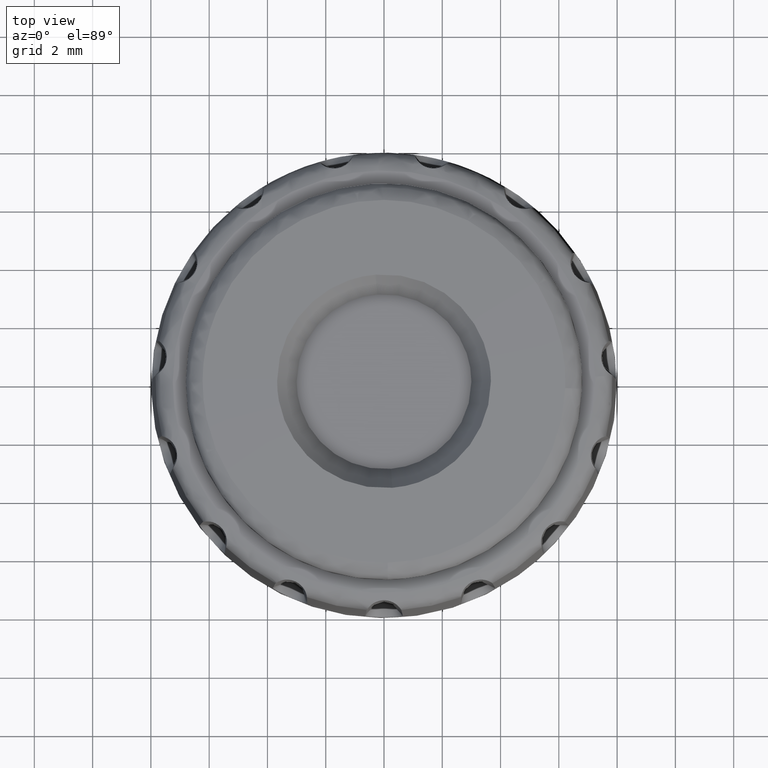
[diagram: clean part render]
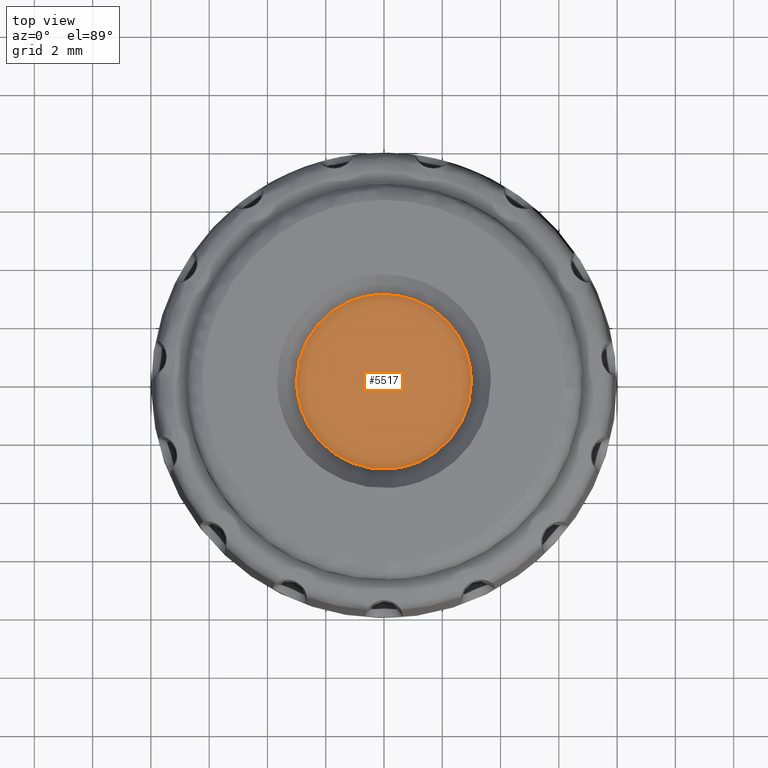
[diagram: same view with one face highlighted and labeled with its STEP entity id]
A machine part, top view. The second image highlights one B-rep face of the part: STEP entity #5517.
In plain terms, the highlighted face is a freeform B-spline surface patch.
Its self-contained STEP definition (entity closure, byte-faithful):
#705=CARTESIAN_POINT('',(-3.0,0.0,10.0));
#706=VERTEX_POINT('',#705);
#707=CARTESIAN_POINT('',(-0.235377287188171,2.990752001199546,10.000000000000741));
#708=VERTEX_POINT('',#707);
#709=CARTESIAN_POINT('',(-3.0,0.0,10.0));
#710=CARTESIAN_POINT('',(-3.0,2.773171474966078,10.000000000000002));
#711=CARTESIAN_POINT('',(-0.235377287188171,2.990752001199546,10.000000000000744));
#719=(BOUNDED_CURVE()B_SPLINE_CURVE(2,(#709,#710,#711),.UNSPECIFIED.,.F.,.U.)B_SPLINE_CURVE_WITH_KNOTS((3,3),(0.0,0.236331300632240),.UNSPECIFIED.)CURVE()GEOMETRIC_REPRESENTATION_ITEM()RATIONAL_B_SPLINE_CURVE((1.0,0.723120658605814,0.969723356170717))REPRESENTATION_ITEM(''));
#720=EDGE_CURVE('',#706,#708,#719,.T.);
#761=CARTESIAN_POINT('',(0.235377287188171,-2.990752001199546,10.000000000000741));
#762=VERTEX_POINT('',#761);
#768=CARTESIAN_POINT('',(0.235377287188171,-2.990752001199546,10.000000000000744));
#769=CARTESIAN_POINT('',(0.117870321027624,-3.000000000000000,10.0));
#770=CARTESIAN_POINT('',(0.0,-3.0,10.0));
#771=CARTESIAN_POINT('',(-3.0,-3.0,10.000000000000002));
#772=CARTESIAN_POINT('',(-3.0,0.0,10.0));
#780=(BOUNDED_CURVE()B_SPLINE_CURVE(2,(#768,#769,#770,#771,#772),.UNSPECIFIED.,.F.,.U.)B_SPLINE_CURVE_WITH_KNOTS((3,2,3),(0.736331300632240,0.750000000000000,1.0),.UNSPECIFIED.)CURVE()GEOMETRIC_REPRESENTATION_ITEM()RATIONAL_B_SPLINE_CURVE((0.969723356170716,0.983986122580734,1.0,0.707106781186548,1.0))REPRESENTATION_ITEM(''));
#781=EDGE_CURVE('',#762,#706,#780,.T.);
#804=CARTESIAN_POINT('',(3.0,0.0,10.0));
#805=VERTEX_POINT('',#804);
#806=CARTESIAN_POINT('',(-0.235377287188171,2.990752001199546,10.000000000000744));
#807=CARTESIAN_POINT('',(-0.117870321027624,3.000000000000000,10.0));
#808=CARTESIAN_POINT('',(0.0,3.0,10.0));
#809=CARTESIAN_POINT('',(3.0,3.0,10.000000000000002));
#810=CARTESIAN_POINT('',(3.0,0.0,10.0));
#818=(BOUNDED_CURVE()B_SPLINE_CURVE(2,(#806,#807,#808,#809,#810),.UNSPECIFIED.,.F.,.U.)B_SPLINE_CURVE_WITH_KNOTS((3,2,3),(0.236331300632240,0.250000000000000,0.500000000000000),.UNSPECIFIED.)CURVE()GEOMETRIC_REPRESENTATION_ITEM()RATIONAL_B_SPLINE_CURVE((0.969723356170716,0.983986122580734,1.0,0.707106781186548,1.0))REPRESENTATION_ITEM(''));
#819=EDGE_CURVE('',#708,#805,#818,.T.);
#821=CARTESIAN_POINT('',(3.0,0.0,10.0));
#822=CARTESIAN_POINT('',(3.000000000000000,-2.773171474966068,10.0));
#823=CARTESIAN_POINT('',(0.235377287188171,-2.990752001199545,10.000000000000744));
#831=(BOUNDED_CURVE()B_SPLINE_CURVE(2,(#821,#822,#823),.UNSPECIFIED.,.F.,.U.)B_SPLINE_CURVE_WITH_KNOTS((3,3),(0.500000000000000,0.736331300632240),.UNSPECIFIED.)CURVE()GEOMETRIC_REPRESENTATION_ITEM()RATIONAL_B_SPLINE_CURVE((1.0,0.723120658605814,0.969723356170715))REPRESENTATION_ITEM(''));
#832=EDGE_CURVE('',#805,#762,#831,.T.);
#5506=CARTESIAN_POINT('',(-3.299699988370835,-3.298784258180543,10.0));
#5507=CARTESIAN_POINT('',(3.299700149303376,-3.298784258180543,10.0));
#5508=CARTESIAN_POINT('',(-3.299699988370835,3.298784419113084,10.0));
#5509=CARTESIAN_POINT('',(3.299700149303376,3.298784419113084,10.0));
#5510=B_SPLINE_SURFACE_WITH_KNOTS('',1,1,((#5506,#5508),(#5507,#5509)),.UNSPECIFIED.,.F.,.F.,.U.,(2,2),(2,2),(0.0,6.599400137674212),(0.0,6.597568677293627),.UNSPECIFIED.);
#5511=ORIENTED_EDGE('',*,*,#781,.F.);
#5512=ORIENTED_EDGE('',*,*,#832,.F.);
#5513=ORIENTED_EDGE('',*,*,#819,.F.);
#5514=ORIENTED_EDGE('',*,*,#720,.F.);
#5515=EDGE_LOOP('',(#5511,#5512,#5513,#5514));
#5516=FACE_OUTER_BOUND('',#5515,.T.);
#5517=ADVANCED_FACE('',(#5516),#5510,.T.);